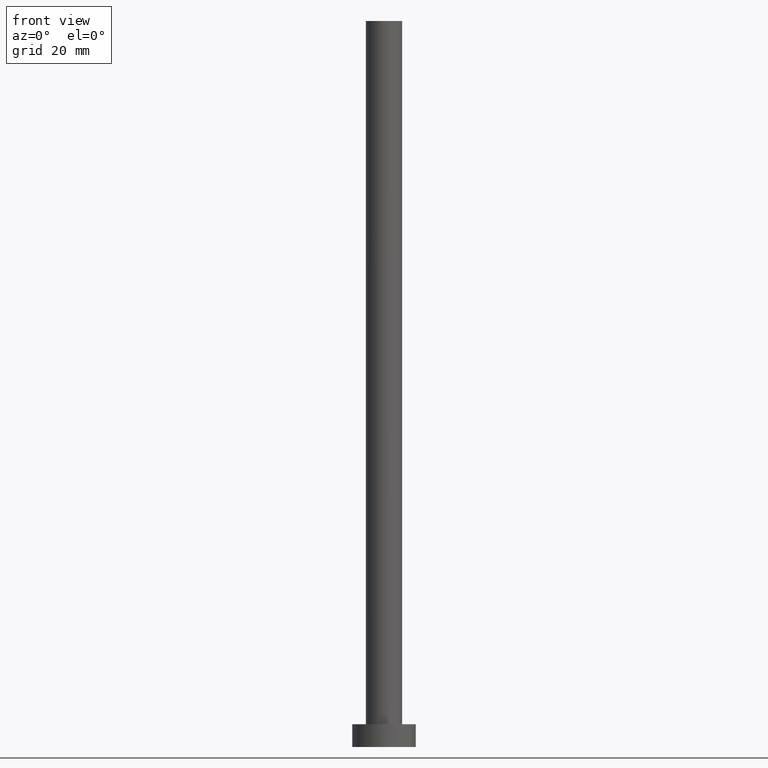
[diagram: clean part render]
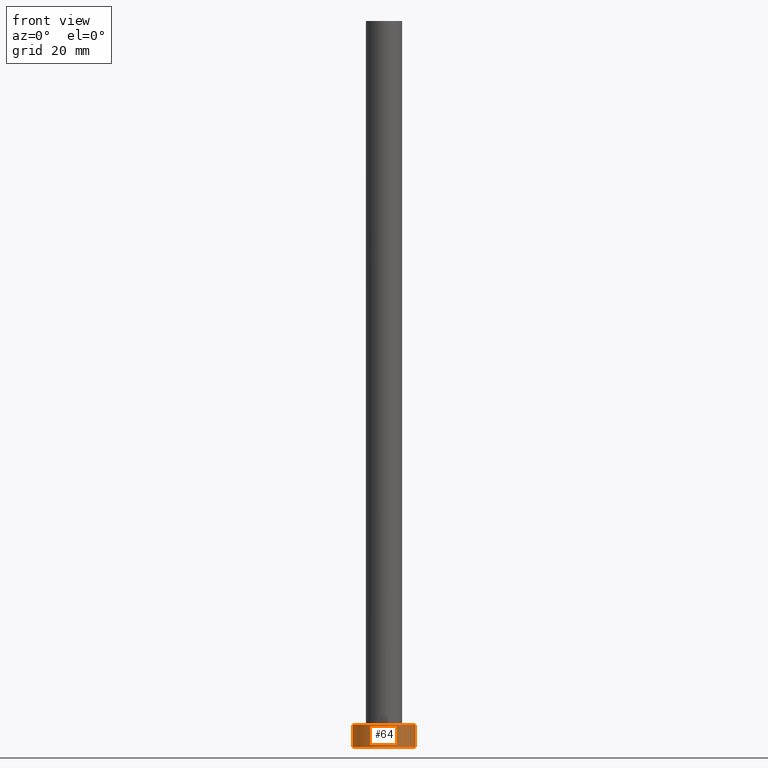
[diagram: same view with one face highlighted and labeled with its STEP entity id]
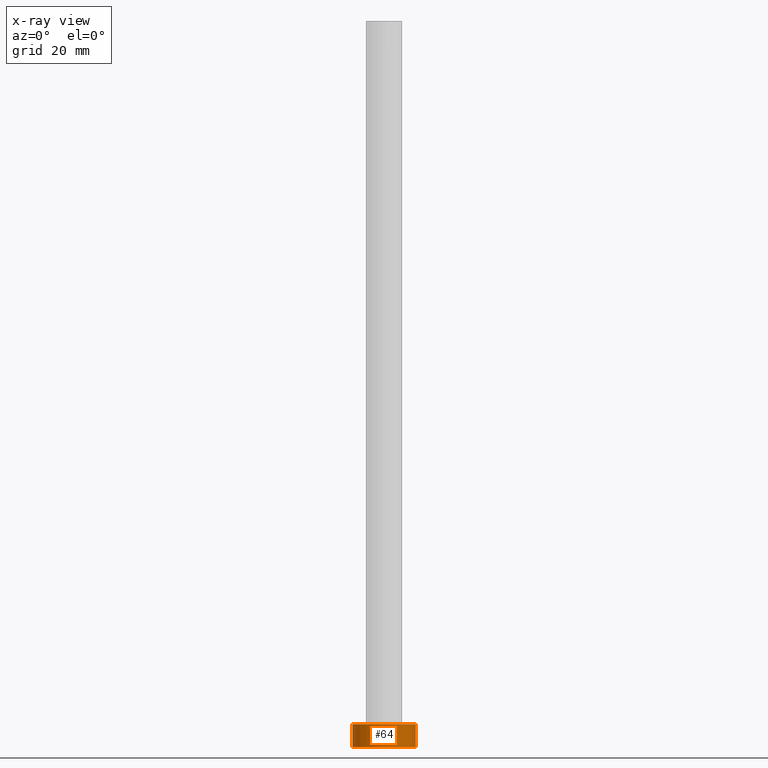
[diagram: x-ray of the same camera — body ghosted, the highlighted face saturated]
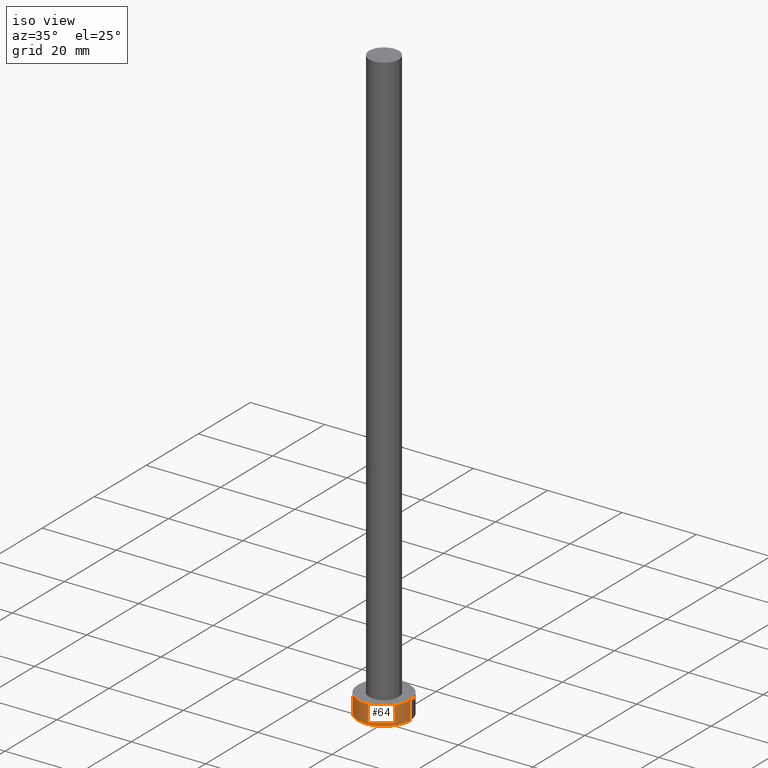
[diagram: same view with one face highlighted and labeled with its STEP entity id]
A machine part, front view. The second image highlights one B-rep face of the part: STEP entity #64.
The next image is the same camera in x-ray: the body ghosted, the highlighted face saturated — about 0% of this face is hidden behind the body in this view.
A second angle (iso view) of the same face is appended — the face is thin or edge-on in the first view.
In plain terms, the highlighted cylindrical surface (edge-blend (fillet) strip) has radius 7 mm, axis along (-0, -0, -1).
Its self-contained STEP definition (entity closure, byte-faithful):
#9 = ORIENTED_EDGE ( 'NONE', *, *, #211, .F. ) ;
#25 = EDGE_CURVE ( 'NONE', #103, #188, #105, .T. ) ;
#32 = EDGE_CURVE ( 'NONE', #172, #103, #232, .T. ) ;
#53 = CARTESIAN_POINT ( 'NONE',  ( 0.000000000000000000, 0.000000000000000000, 5.000000000000000000 ) ) ;
#54 = CARTESIAN_POINT ( 'NONE',  ( -7.000000000000000000, 0.000000000000000000, 0.000000000000000000 ) ) ;
#56 = DIRECTION ( 'NONE',  ( -1.000000000000000000, 0.000000000000000000, 0.000000000000000000 ) ) ;
#57 = EDGE_CURVE ( 'NONE', #132, #188, #157, .T. ) ;
#64 = ADVANCED_FACE ( 'NONE', ( #89 ), #239, .T. ) ;
#65 = ORIENTED_EDGE ( 'NONE', *, *, #32, .T. ) ;
#68 = AXIS2_PLACEMENT_3D ( 'NONE', #53, #236, #235 ) ;
#69 = CARTESIAN_POINT ( 'NONE',  ( 0.000000000000000000, 0.000000000000000000, 0.000000000000000000 ) ) ;
#82 = DIRECTION ( 'NONE',  ( 1.000000000000000000, 0.000000000000000000, 0.000000000000000000 ) ) ;
#89 = FACE_OUTER_BOUND ( 'NONE', #228, .T. ) ;
#93 = AXIS2_PLACEMENT_3D ( 'NONE', #69, #158, #82 ) ;
#103 = VERTEX_POINT ( 'NONE', #54 ) ;
#105 = CIRCLE ( 'NONE', #93, 7.000000000000000000 ) ;
#106 = CARTESIAN_POINT ( 'NONE',  ( 7.000000000000000000, 8.572527594031473190E-16, 0.000000000000000000 ) ) ;
#130 = CARTESIAN_POINT ( 'NONE',  ( 7.000000000000000000, 8.572527594031473190E-16, 5.000000000000000000 ) ) ;
#132 = VERTEX_POINT ( 'NONE', #251 ) ;
#134 = AXIS2_PLACEMENT_3D ( 'NONE', #161, #252, #56 ) ;
#137 = CARTESIAN_POINT ( 'NONE',  ( -7.000000000000000000, 0.000000000000000000, 5.000000000000000000 ) ) ;
#148 = ORIENTED_EDGE ( 'NONE', *, *, #25, .T. ) ;
#152 = VECTOR ( 'NONE', #208, 1000.000000000000000 ) ;
#157 = LINE ( 'NONE', #130, #152 ) ;
#158 = DIRECTION ( 'NONE',  ( 0.000000000000000000, 0.000000000000000000, 1.000000000000000000 ) ) ;
#161 = CARTESIAN_POINT ( 'NONE',  ( 0.000000000000000000, 0.000000000000000000, 5.000000000000000000 ) ) ;
#168 = DIRECTION ( 'NONE',  ( -0.000000000000000000, -0.000000000000000000, -1.000000000000000000 ) ) ;
#172 = VERTEX_POINT ( 'NONE', #137 ) ;
#182 = CIRCLE ( 'NONE', #68, 7.000000000000000000 ) ;
#188 = VERTEX_POINT ( 'NONE', #106 ) ;
#205 = ORIENTED_EDGE ( 'NONE', *, *, #57, .F. ) ;
#208 = DIRECTION ( 'NONE',  ( -0.000000000000000000, -0.000000000000000000, -1.000000000000000000 ) ) ;
#211 = EDGE_CURVE ( 'NONE', #172, #132, #182, .T. ) ;
#228 = EDGE_LOOP ( 'NONE', ( #205, #9, #65, #148 ) ) ;
#231 = CARTESIAN_POINT ( 'NONE',  ( -7.000000000000000000, 0.000000000000000000, 5.000000000000000000 ) ) ;
#232 = LINE ( 'NONE', #231, #254 ) ;
#235 = DIRECTION ( 'NONE',  ( 1.000000000000000000, 0.000000000000000000, 0.000000000000000000 ) ) ;
#236 = DIRECTION ( 'NONE',  ( 0.000000000000000000, 0.000000000000000000, 1.000000000000000000 ) ) ;
#239 = CYLINDRICAL_SURFACE ( 'NONE', #134, 7.000000000000000000 ) ;
#251 = CARTESIAN_POINT ( 'NONE',  ( 7.000000000000000000, 8.572527594031473190E-16, 5.000000000000000000 ) ) ;
#252 = DIRECTION ( 'NONE',  ( -0.000000000000000000, -0.000000000000000000, -1.000000000000000000 ) ) ;
#254 = VECTOR ( 'NONE', #168, 1000.000000000000000 ) ;